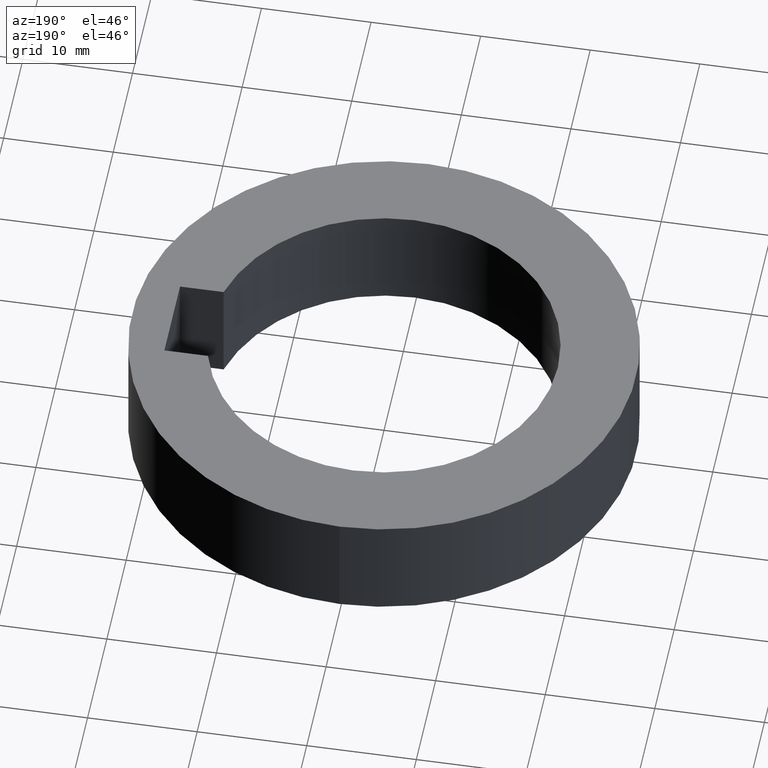
[diagram: clean part render]
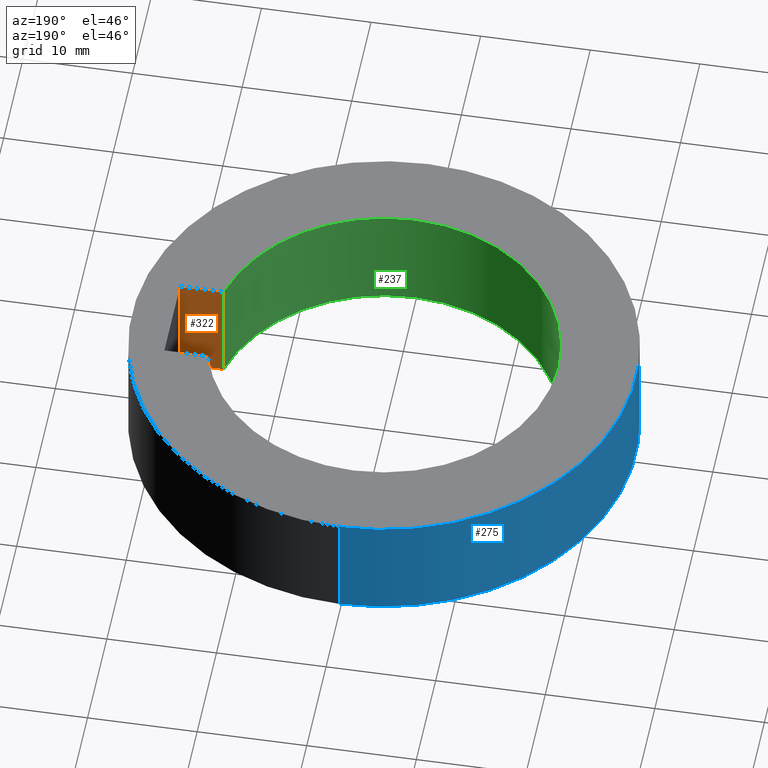
[diagram: same view with three faces highlighted in distinct colors, each labeled with its STEP entity id]
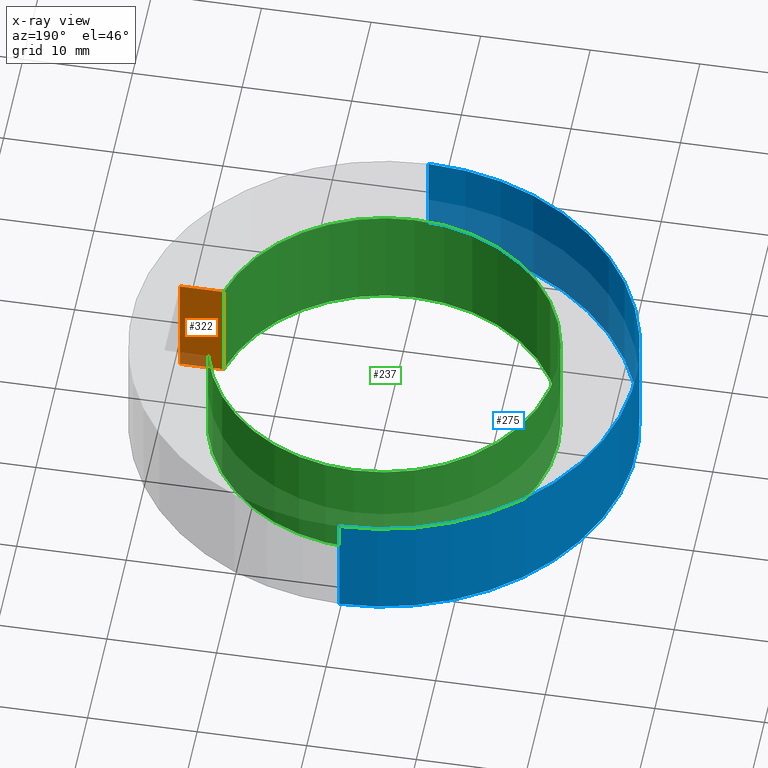
[diagram: x-ray of the same camera — body ghosted, the three highlighted faces saturated]
A machine part, auxiliary view with three faces highlighted in distinct colors.
The next image is the same camera in x-ray (body ghosted, the three faces saturated) — at least one of them is partly hidden behind the body in this view.
Their STEP definitions:

[orange] entity #322 — the highlighted planar face has unit normal (0, -1, 0).
#25=DIRECTION('',(0.E0,0.E0,1.E0));
#26=VECTOR('',#25,1.E1);
#27=CARTESIAN_POINT('',(1.534969462237E1,-4.05E0,-1.E1));
#28=LINE('',#27,#26);
#102=DIRECTION('',(-1.E0,1.050092552909E-14,0.E0));
#103=VECTOR('',#102,3.975305377630E0);
#104=CARTESIAN_POINT('',(1.9325E1,-4.05E0,-1.E1));
#105=LINE('',#104,#103);
#147=DIRECTION('',(0.E0,0.E0,1.E0));
#148=VECTOR('',#147,1.E1);
#149=CARTESIAN_POINT('',(1.9325E1,-4.05E0,-1.E1));
#150=LINE('',#149,#148);
#154=DIRECTION('',(-1.E0,1.027750158167E-14,0.E0));
#155=VECTOR('',#154,3.975305377630E0);
#156=CARTESIAN_POINT('',(1.9325E1,-4.05E0,0.E0));
#157=LINE('',#156,#155);
#183=CARTESIAN_POINT('',(1.534969462237E1,-4.05E0,0.E0));
#185=VERTEX_POINT('',#183);
#196=CARTESIAN_POINT('',(1.534969462237E1,-4.05E0,-1.E1));
#197=VERTEX_POINT('',#196);
#202=CARTESIAN_POINT('',(1.9325E1,-4.05E0,0.E0));
#203=VERTEX_POINT('',#202);
#210=CARTESIAN_POINT('',(1.9325E1,-4.05E0,-1.E1));
#211=VERTEX_POINT('',#210);
#310=CARTESIAN_POINT('',(1.1225E1,-4.05E0,0.E0));
#311=DIRECTION('',(0.E0,-1.E0,0.E0));
#312=DIRECTION('',(1.E0,0.E0,0.E0));
#313=AXIS2_PLACEMENT_3D('',#310,#311,#312);
#314=PLANE('',#313);
#315=ORIENTED_EDGE('',*,*,#233,.F.);
#316=ORIENTED_EDGE('',*,*,#298,.F.);
#318=ORIENTED_EDGE('',*,*,#317,.T.);
#319=ORIENTED_EDGE('',*,*,#249,.T.);
#320=EDGE_LOOP('',(#315,#316,#318,#319));
#321=FACE_OUTER_BOUND('',#320,.F.);
#233=EDGE_CURVE('',#197,#185,#28,.T.);
#249=EDGE_CURVE('',#203,#185,#157,.T.);
#298=EDGE_CURVE('',#211,#197,#105,.T.);
#317=EDGE_CURVE('',#211,#203,#150,.T.);
#322=ADVANCED_FACE('',(#321),#314,.F.);

[blue] entity #275 — the highlighted cylindrical surface (partial cylindrical patch) has radius 23 mm, axis along (0, 0, -1).
#32=CARTESIAN_POINT('',(0.E0,1.230770033143E-14,0.E0));
#33=DIRECTION('',(0.E0,0.E0,-1.E0));
#34=DIRECTION('',(0.E0,-1.E0,0.E0));
#35=AXIS2_PLACEMENT_3D('',#32,#33,#34);
#72=DIRECTION('',(0.E0,0.E0,-1.E0));
#73=VECTOR('',#72,1.E1);
#74=CARTESIAN_POINT('',(0.E0,-2.3E1,0.E0));
#75=LINE('',#74,#73);
#79=DIRECTION('',(0.E0,0.E0,-1.E0));
#80=VECTOR('',#79,1.E1);
#81=CARTESIAN_POINT('',(0.E0,2.3E1,0.E0));
#82=LINE('',#81,#80);
#94=CARTESIAN_POINT('',(0.E0,1.230770033143E-14,-1.E1));
#95=DIRECTION('',(0.E0,0.E0,1.E0));
#96=DIRECTION('',(0.E0,1.E0,0.E0));
#97=AXIS2_PLACEMENT_3D('',#94,#95,#96);
#198=CARTESIAN_POINT('',(0.E0,-2.3E1,0.E0));
#199=CARTESIAN_POINT('',(0.E0,2.3E1,0.E0));
#200=VERTEX_POINT('',#198);
#201=VERTEX_POINT('',#199);
#206=CARTESIAN_POINT('',(0.E0,2.3E1,-1.E1));
#207=VERTEX_POINT('',#206);
#208=CARTESIAN_POINT('',(0.E0,-2.3E1,-1.E1));
#209=VERTEX_POINT('',#208);
#261=CARTESIAN_POINT('',(0.E0,1.230770033143E-14,5.E-1));
#262=DIRECTION('',(0.E0,0.E0,-1.E0));
#263=DIRECTION('',(0.E0,-1.E0,0.E0));
#264=AXIS2_PLACEMENT_3D('',#261,#262,#263);
#265=CYLINDRICAL_SURFACE('',#264,2.3E1);
#267=ORIENTED_EDGE('',*,*,#266,.F.);
#268=ORIENTED_EDGE('',*,*,#243,.F.);
#270=ORIENTED_EDGE('',*,*,#269,.T.);
#272=ORIENTED_EDGE('',*,*,#271,.F.);
#273=EDGE_LOOP('',(#267,#268,#270,#272));
#274=FACE_OUTER_BOUND('',#273,.F.);
#36=CIRCLE('',#35,2.3E1);
#98=CIRCLE('',#97,2.3E1);
#243=EDGE_CURVE('',#200,#201,#36,.T.);
#266=EDGE_CURVE('',#201,#207,#82,.T.);
#269=EDGE_CURVE('',#200,#209,#75,.T.);
#271=EDGE_CURVE('',#207,#209,#98,.T.);
#275=ADVANCED_FACE('',(#274),#265,.T.);

[green] entity #237 — the highlighted cylindrical surface (partial cylindrical patch) has radius 15.875 mm, axis along (0, 0, -1).
#17=DIRECTION('',(0.E0,0.E0,-1.E0));
#18=VECTOR('',#17,1.E1);
#19=CARTESIAN_POINT('',(1.534969462237E1,4.05E0,0.E0));
#20=LINE('',#19,#18);
#25=DIRECTION('',(0.E0,0.E0,1.E0));
#26=VECTOR('',#25,1.E1);
#27=CARTESIAN_POINT('',(1.534969462237E1,-4.05E0,-1.E1));
#28=LINE('',#27,#26);
#48=CARTESIAN_POINT('',(0.E0,1.230770033143E-14,0.E0));
#49=DIRECTION('',(0.E0,0.E0,1.E0));
#50=DIRECTION('',(9.669098974721E-1,2.551181102362E-1,0.E0));
#51=AXIS2_PLACEMENT_3D('',#48,#49,#50);
#56=CARTESIAN_POINT('',(0.E0,1.230770033143E-14,0.E0));
#57=DIRECTION('',(0.E0,0.E0,1.E0));
#58=DIRECTION('',(0.E0,1.E0,0.E0));
#59=AXIS2_PLACEMENT_3D('',#56,#57,#58);
#64=CARTESIAN_POINT('',(0.E0,1.230770033143E-14,0.E0));
#65=DIRECTION('',(0.E0,0.E0,1.E0));
#66=DIRECTION('',(0.E0,-1.E0,0.E0));
#67=AXIS2_PLACEMENT_3D('',#64,#65,#66);
#109=CARTESIAN_POINT('',(0.E0,1.230770033143E-14,-1.E1));
#110=DIRECTION('',(0.E0,0.E0,-1.E0));
#111=DIRECTION('',(9.669098974721E-1,-2.551181102362E-1,0.E0));
#112=AXIS2_PLACEMENT_3D('',#109,#110,#111);
#117=CARTESIAN_POINT('',(0.E0,1.230770033143E-14,-1.E1));
#118=DIRECTION('',(0.E0,0.E0,-1.E0));
#119=DIRECTION('',(0.E0,-1.E0,0.E0));
#120=AXIS2_PLACEMENT_3D('',#117,#118,#119);
#125=CARTESIAN_POINT('',(0.E0,1.230770033143E-14,-1.E1));
#126=DIRECTION('',(0.E0,0.E0,-1.E0));
#127=DIRECTION('',(0.E0,1.E0,0.E0));
#128=AXIS2_PLACEMENT_3D('',#125,#126,#127);
#182=CARTESIAN_POINT('',(0.E0,-1.5875E1,0.E0));
#183=CARTESIAN_POINT('',(1.534969462237E1,-4.05E0,0.E0));
#184=VERTEX_POINT('',#182);
#185=VERTEX_POINT('',#183);
#186=CARTESIAN_POINT('',(0.E0,1.5875E1,0.E0));
#187=VERTEX_POINT('',#186);
#188=CARTESIAN_POINT('',(1.534969462237E1,4.05E0,0.E0));
#189=VERTEX_POINT('',#188);
#190=CARTESIAN_POINT('',(1.534969462237E1,4.05E0,-1.E1));
#191=VERTEX_POINT('',#190);
#192=CARTESIAN_POINT('',(0.E0,1.5875E1,-1.E1));
#193=VERTEX_POINT('',#192);
#194=CARTESIAN_POINT('',(0.E0,-1.5875E1,-1.E1));
#195=VERTEX_POINT('',#194);
#196=CARTESIAN_POINT('',(1.534969462237E1,-4.05E0,-1.E1));
#197=VERTEX_POINT('',#196);
#214=CARTESIAN_POINT('',(0.E0,1.230770033143E-14,5.E-1));
#215=DIRECTION('',(0.E0,0.E0,-1.E0));
#216=DIRECTION('',(0.E0,-1.E0,0.E0));
#217=AXIS2_PLACEMENT_3D('',#214,#215,#216);
#218=CYLINDRICAL_SURFACE('',#217,1.5875E1);
#220=ORIENTED_EDGE('',*,*,#219,.F.);
#222=ORIENTED_EDGE('',*,*,#221,.F.);
#224=ORIENTED_EDGE('',*,*,#223,.F.);
#226=ORIENTED_EDGE('',*,*,#225,.T.);
#228=ORIENTED_EDGE('',*,*,#227,.F.);
#230=ORIENTED_EDGE('',*,*,#229,.F.);
#232=ORIENTED_EDGE('',*,*,#231,.F.);
#234=ORIENTED_EDGE('',*,*,#233,.T.);
#235=EDGE_LOOP('',(#220,#222,#224,#226,#228,#230,#232,#234));
#236=FACE_OUTER_BOUND('',#235,.F.);
#52=CIRCLE('',#51,1.5875E1);
#60=CIRCLE('',#59,1.5875E1);
#68=CIRCLE('',#67,1.5875E1);
#113=CIRCLE('',#112,1.5875E1);
#121=CIRCLE('',#120,1.5875E1);
#129=CIRCLE('',#128,1.5875E1);
#219=EDGE_CURVE('',#184,#185,#68,.T.);
#221=EDGE_CURVE('',#187,#184,#60,.T.);
#223=EDGE_CURVE('',#189,#187,#52,.T.);
#225=EDGE_CURVE('',#189,#191,#20,.T.);
#227=EDGE_CURVE('',#193,#191,#129,.T.);
#229=EDGE_CURVE('',#195,#193,#121,.T.);
#231=EDGE_CURVE('',#197,#195,#113,.T.);
#233=EDGE_CURVE('',#197,#185,#28,.T.);
#237=ADVANCED_FACE('',(#236),#218,.F.);